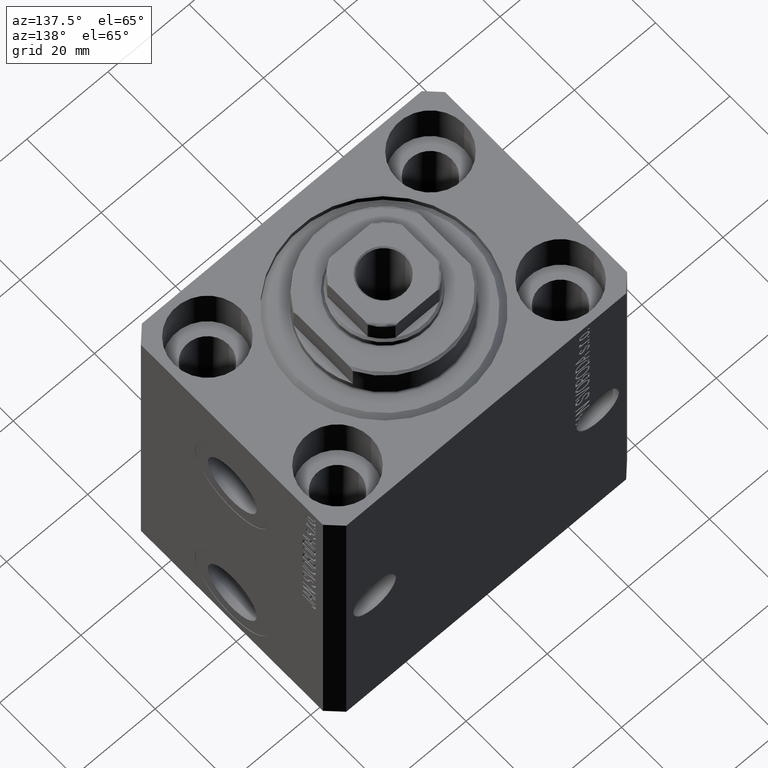
[diagram: clean part render]
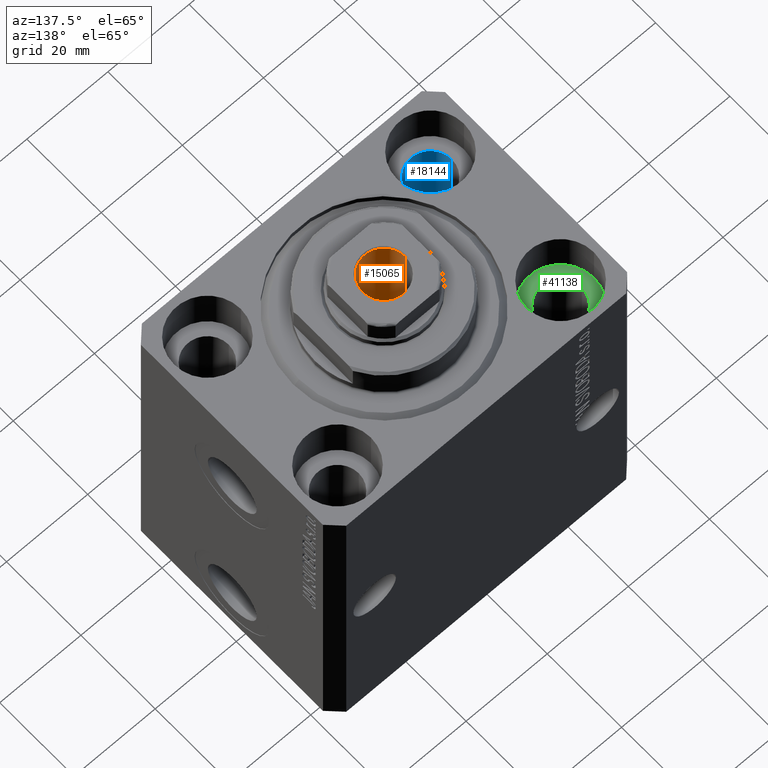
[diagram: same view with three faces highlighted in distinct colors, each labeled with its STEP entity id]
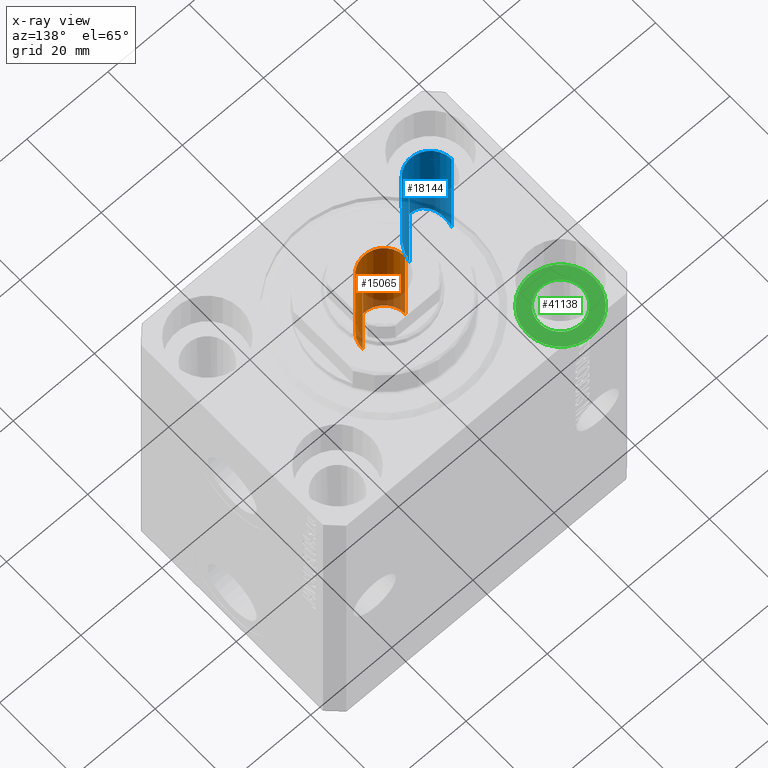
[diagram: x-ray of the same camera — body ghosted, the three highlighted faces saturated]
A machine part, auxiliary view with three faces highlighted in distinct colors.
The next image is the same camera in x-ray (body ghosted, the three faces saturated) — at least one of them is partly hidden behind the body in this view.
Their STEP definitions:

[orange] entity #15065 — the highlighted cylindrical surface (edge-blend (fillet) strip) has radius 5.25 mm, axis along (0, 0, 1).
#2521 = CARTESIAN_POINT ( 'NONE',  ( -5.249999999999995559, 6.429395695523600208E-16, 84.80000000000002558 ) ) ;
#2678 = ORIENTED_EDGE ( 'NONE', *, *, #15729, .T. ) ;
#4017 = EDGE_CURVE ( 'NONE', #16095, #25781, #27975, .T. ) ;
#4331 = VERTEX_POINT ( 'NONE', #39296 ) ;
#4792 = CARTESIAN_POINT ( 'NONE',  ( 0.000000000000000000, 0.000000000000000000, 85.10000000000000853 ) ) ;
#5081 = LINE ( 'NONE', #12743, #8043 ) ;
#7312 = EDGE_CURVE ( 'NONE', #44082, #25781, #43739, .T. ) ;
#8043 = VECTOR ( 'NONE', #25836, 1000.000000000000000 ) ;
#8103 = DIRECTION ( 'NONE',  ( -0.000000000000000000, -0.000000000000000000, 1.000000000000000000 ) ) ;
#11583 = DIRECTION ( 'NONE',  ( -0.000000000000000000, -0.000000000000000000, 1.000000000000000000 ) ) ;
#11804 = DIRECTION ( 'NONE',  ( 1.000000000000000000, 0.000000000000000000, 0.000000000000000000 ) ) ;
#12156 = CARTESIAN_POINT ( 'NONE',  ( 0.000000000000000000, 0.000000000000000000, 60.10000000000000853 ) ) ;
#12743 = CARTESIAN_POINT ( 'NONE',  ( -5.249999999999995559, 6.429395695523600208E-16, 85.10000000000000853 ) ) ;
#12900 = ORIENTED_EDGE ( 'NONE', *, *, #4017, .T. ) ;
#13277 = DIRECTION ( 'NONE',  ( 1.000000000000000000, 0.000000000000000000, 0.000000000000000000 ) ) ;
#15065 = ADVANCED_FACE ( 'NONE', ( #32111 ), #32554, .F. ) ;
#15246 = ORIENTED_EDGE ( 'NONE', *, *, #32123, .F. ) ;
#15729 = EDGE_CURVE ( 'NONE', #4331, #16095, #5081, .T. ) ;
#16095 = VERTEX_POINT ( 'NONE', #2521 ) ;
#17639 = CARTESIAN_POINT ( 'NONE',  ( 5.249999999999995559, 0.000000000000000000, 84.80000000000002558 ) ) ;
#21477 = AXIS2_PLACEMENT_3D ( 'NONE', #41490, #30427, #13277 ) ;
#21917 = EDGE_LOOP ( 'NONE', ( #15246, #2678, #12900, #39482 ) ) ;
#25781 = VERTEX_POINT ( 'NONE', #17639 ) ;
#25836 = DIRECTION ( 'NONE',  ( -0.000000000000000000, -0.000000000000000000, 1.000000000000000000 ) ) ;
#27370 = CARTESIAN_POINT ( 'NONE',  ( 5.249999999999994671, 0.000000000000000000, 60.10000000000000853 ) ) ;
#27975 = CIRCLE ( 'NONE', #21477, 5.249999999999995559 ) ;
#30203 = CARTESIAN_POINT ( 'NONE',  ( 5.249999999999995559, 0.000000000000000000, 85.10000000000000853 ) ) ;
#30427 = DIRECTION ( 'NONE',  ( 0.000000000000000000, 0.000000000000000000, 1.000000000000000000 ) ) ;
#30794 = CIRCLE ( 'NONE', #37348, 5.249999999999994671 ) ;
#32111 = FACE_OUTER_BOUND ( 'NONE', #21917, .T. ) ;
#32123 = EDGE_CURVE ( 'NONE', #4331, #44082, #30794, .T. ) ;
#32243 = DIRECTION ( 'NONE',  ( 1.000000000000000000, 0.000000000000000000, 0.000000000000000000 ) ) ;
#32554 = CYLINDRICAL_SURFACE ( 'NONE', #34790, 5.249999999999995559 ) ;
#33803 = VECTOR ( 'NONE', #40797, 1000.000000000000000 ) ;
#34790 = AXIS2_PLACEMENT_3D ( 'NONE', #4792, #11583, #11804 ) ;
#37348 = AXIS2_PLACEMENT_3D ( 'NONE', #12156, #8103, #32243 ) ;
#39296 = CARTESIAN_POINT ( 'NONE',  ( -5.249999999999994671, 6.429395695523597250E-16, 60.10000000000000853 ) ) ;
#39482 = ORIENTED_EDGE ( 'NONE', *, *, #7312, .F. ) ;
#40797 = DIRECTION ( 'NONE',  ( -0.000000000000000000, -0.000000000000000000, 1.000000000000000000 ) ) ;
#41490 = CARTESIAN_POINT ( 'NONE',  ( 0.000000000000000000, 0.000000000000000000, 84.80000000000002558 ) ) ;
#43739 = LINE ( 'NONE', #30203, #33803 ) ;
#44082 = VERTEX_POINT ( 'NONE', #27370 ) ;

[blue] entity #18144 — the highlighted cylindrical surface (edge-blend (fillet) strip) has radius 5.25 mm, axis along (0, 0, 1).
#538 = VERTEX_POINT ( 'NONE', #26599 ) ;
#3477 = DIRECTION ( 'NONE',  ( 0.000000000000000000, 0.000000000000000000, 1.000000000000000000 ) ) ;
#4887 = CARTESIAN_POINT ( 'NONE',  ( -22.25000000000000000, -17.50000000000000000, -40.00000000000000711 ) ) ;
#7209 = CIRCLE ( 'NONE', #43949, 5.250000000000000888 ) ;
#7817 = EDGE_CURVE ( 'NONE', #35187, #538, #7209, .T. ) ;
#9368 = VECTOR ( 'NONE', #24264, 1000.000000000000000 ) ;
#9977 = DIRECTION ( 'NONE',  ( -0.000000000000000000, -0.000000000000000000, 1.000000000000000000 ) ) ;
#10047 = CARTESIAN_POINT ( 'NONE',  ( -32.75000000000000000, -17.50000000000000000, -80.00000000000000000 ) ) ;
#10717 = ORIENTED_EDGE ( 'NONE', *, *, #32826, .T. ) ;
#11954 = CARTESIAN_POINT ( 'NONE',  ( -22.25000000000000355, -17.50000000000000000, -80.00000000000000000 ) ) ;
#15420 = ORIENTED_EDGE ( 'NONE', *, *, #7817, .T. ) ;
#15502 = CARTESIAN_POINT ( 'NONE',  ( -22.24999999999999645, -28.00000000000000000, -29.50000000000001066 ) ) ;
#16974 = DIRECTION ( 'NONE',  ( 1.000000000000000000, 0.000000000000000000, 0.000000000000000000 ) ) ;
#18144 = ADVANCED_FACE ( 'NONE', ( #41115 ), #24190, .F. ) ;
#18642 = CARTESIAN_POINT ( 'NONE',  ( -32.74999999999999289, -28.00000000000000000, -29.50000000000001066 ) ) ;
#20181 = LINE ( 'NONE', #10047, #9368 ) ;
#22063 = EDGE_LOOP ( 'NONE', ( #28221, #10717, #15420, #39793 ) ) ;
#23732 = CARTESIAN_POINT ( 'NONE',  ( -27.50000000000000355, -17.50000000000000000, -80.00000000000000000 ) ) ;
#23776 = CARTESIAN_POINT ( 'NONE',  ( -27.50000000000000355, -17.50000000000000000, -11.00000000000000000 ) ) ;
#23876 = CARTESIAN_POINT ( 'NONE',  ( -32.74999999999999289, -17.50000000000000000, -40.00000000000000711 ) ) ;
#23982 = VERTEX_POINT ( 'NONE', #23876 ) ;
#24012 = DIRECTION ( 'NONE',  ( 1.000000000000000000, 0.000000000000000000, 0.000000000000000000 ) ) ;
#24190 = CYLINDRICAL_SURFACE ( 'NONE', #31181, 5.250000000000000888 ) ;
#24264 = DIRECTION ( 'NONE',  ( -0.000000000000000000, -0.000000000000000000, 1.000000000000000000 ) ) ;
#24330 = CARTESIAN_POINT ( 'NONE',  ( -22.25000000000000000, -17.50000000000000000, -40.00000000000000711 ) ) ;
#25193 = CARTESIAN_POINT ( 'NONE',  ( -32.75000000000000000, -17.50000000000000000, -11.00000000000000000 ) ) ;
#25705 = DIRECTION ( 'NONE',  ( -0.000000000000000000, -0.000000000000000000, 1.000000000000000000 ) ) ;
#26599 = CARTESIAN_POINT ( 'NONE',  ( -22.25000000000000355, -17.50000000000000000, -11.00000000000000000 ) ) ;
#28221 = ORIENTED_EDGE ( 'NONE', *, *, #33682, .T. ) ;
#31181 = AXIS2_PLACEMENT_3D ( 'NONE', #23732, #9977, #16974 ) ;
#32826 = EDGE_CURVE ( 'NONE', #23982, #35187, #20181, .T. ) ;
#33682 = EDGE_CURVE ( 'NONE', #35999, #23982, #35975, .T. ) ;
#34329 = EDGE_CURVE ( 'NONE', #35999, #538, #36317, .T. ) ;
#35187 = VERTEX_POINT ( 'NONE', #25193 ) ;
#35975 =( BOUNDED_CURVE ( )  B_SPLINE_CURVE ( 3, ( #4887, #15502, #18642, #42361 ),
 .UNSPECIFIED., .F., .F. ) 
 B_SPLINE_CURVE_WITH_KNOTS ( ( 4, 4 ),
 ( 4.712388980384689674, 7.853981633974482790 ),
 .UNSPECIFIED. ) 
 CURVE ( )  GEOMETRIC_REPRESENTATION_ITEM ( )  RATIONAL_B_SPLINE_CURVE ( ( 1.000000000000000000, 0.3333333333333333703, 0.3333333333333333703, 1.000000000000000000 ) ) 
 REPRESENTATION_ITEM ( '' )  );
#35999 = VERTEX_POINT ( 'NONE', #24330 ) ;
#36317 = LINE ( 'NONE', #11954, #38254 ) ;
#38254 = VECTOR ( 'NONE', #25705, 1000.000000000000000 ) ;
#39793 = ORIENTED_EDGE ( 'NONE', *, *, #34329, .F. ) ;
#41115 = FACE_OUTER_BOUND ( 'NONE', #22063, .T. ) ;
#42361 = CARTESIAN_POINT ( 'NONE',  ( -32.74999999999999289, -17.50000000000000000, -40.00000000000000711 ) ) ;
#43949 = AXIS2_PLACEMENT_3D ( 'NONE', #23776, #3477, #24012 ) ;

[green] entity #41138 — the highlighted planar face has unit normal (0, 0, 1).
#892 = CIRCLE ( 'NONE', #15279, 8.250000000000000000 ) ;
#1872 = ORIENTED_EDGE ( 'NONE', *, *, #27009, .F. ) ;
#2683 = EDGE_CURVE ( 'NONE', #33924, #3523, #6293, .T. ) ;
#3523 = VERTEX_POINT ( 'NONE', #28931 ) ;
#3911 = CARTESIAN_POINT ( 'NONE',  ( -19.25000000000000355, 17.50000000000000000, -11.00000000000000000 ) ) ;
#4224 = DIRECTION ( 'NONE',  ( 1.000000000000000000, 0.000000000000000000, 0.000000000000000000 ) ) ;
#5135 = AXIS2_PLACEMENT_3D ( 'NONE', #44590, #20443, #43702 ) ;
#5136 = CARTESIAN_POINT ( 'NONE',  ( -27.50000000000000355, 17.50000000000000000, -11.00000000000000000 ) ) ;
#6293 = CIRCLE ( 'NONE', #32266, 8.250000000000000000 ) ;
#7615 = CARTESIAN_POINT ( 'NONE',  ( -27.50000000000000355, 17.50000000000000000, -11.00000000000000000 ) ) ;
#11349 = EDGE_CURVE ( 'NONE', #21961, #22280, #15931, .T. ) ;
#12140 = DIRECTION ( 'NONE',  ( 0.000000000000000000, 0.000000000000000000, 1.000000000000000000 ) ) ;
#13386 = AXIS2_PLACEMENT_3D ( 'NONE', #38588, #18470, #32029 ) ;
#14660 = FACE_OUTER_BOUND ( 'NONE', #25475, .T. ) ;
#15279 = AXIS2_PLACEMENT_3D ( 'NONE', #26833, #17145, #34065 ) ;
#15519 = ORIENTED_EDGE ( 'NONE', *, *, #11349, .F. ) ;
#15931 = CIRCLE ( 'NONE', #5135, 5.250000000000000888 ) ;
#17145 = DIRECTION ( 'NONE',  ( 0.000000000000000000, 0.000000000000000000, 1.000000000000000000 ) ) ;
#18470 = DIRECTION ( 'NONE',  ( 0.000000000000000000, 0.000000000000000000, 1.000000000000000000 ) ) ;
#20314 = AXIS2_PLACEMENT_3D ( 'NONE', #5136, #12140, #39436 ) ;
#20443 = DIRECTION ( 'NONE',  ( 0.000000000000000000, 0.000000000000000000, 1.000000000000000000 ) ) ;
#21961 = VERTEX_POINT ( 'NONE', #23169 ) ;
#22280 = VERTEX_POINT ( 'NONE', #31033 ) ;
#23169 = CARTESIAN_POINT ( 'NONE',  ( -32.75000000000000000, 17.50000000000000000, -11.00000000000000000 ) ) ;
#24350 = FACE_BOUND ( 'NONE', #32814, .T. ) ;
#25314 = ORIENTED_EDGE ( 'NONE', *, *, #2683, .T. ) ;
#25475 = EDGE_LOOP ( 'NONE', ( #25314, #39660 ) ) ;
#26833 = CARTESIAN_POINT ( 'NONE',  ( -27.50000000000000355, 17.50000000000000000, -11.00000000000000000 ) ) ;
#27009 = EDGE_CURVE ( 'NONE', #22280, #21961, #32838, .T. ) ;
#28931 = CARTESIAN_POINT ( 'NONE',  ( -35.75000000000000711, 17.50000000000000000, -11.00000000000000000 ) ) ;
#31033 = CARTESIAN_POINT ( 'NONE',  ( -22.25000000000000355, 17.50000000000000000, -11.00000000000000000 ) ) ;
#32029 = DIRECTION ( 'NONE',  ( 1.000000000000000000, 0.000000000000000000, 0.000000000000000000 ) ) ;
#32266 = AXIS2_PLACEMENT_3D ( 'NONE', #7615, #35152, #4224 ) ;
#32814 = EDGE_LOOP ( 'NONE', ( #1872, #15519 ) ) ;
#32838 = CIRCLE ( 'NONE', #13386, 5.250000000000000888 ) ;
#33924 = VERTEX_POINT ( 'NONE', #3911 ) ;
#34065 = DIRECTION ( 'NONE',  ( 1.000000000000000000, 0.000000000000000000, 0.000000000000000000 ) ) ;
#35152 = DIRECTION ( 'NONE',  ( 0.000000000000000000, 0.000000000000000000, 1.000000000000000000 ) ) ;
#35630 = PLANE ( 'NONE',  #20314 ) ;
#38588 = CARTESIAN_POINT ( 'NONE',  ( -27.50000000000000355, 17.50000000000000000, -11.00000000000000000 ) ) ;
#39436 = DIRECTION ( 'NONE',  ( 1.000000000000000000, 0.000000000000000000, -0.000000000000000000 ) ) ;
#39660 = ORIENTED_EDGE ( 'NONE', *, *, #40451, .T. ) ;
#40451 = EDGE_CURVE ( 'NONE', #3523, #33924, #892, .T. ) ;
#41138 = ADVANCED_FACE ( 'NONE', ( #24350, #14660 ), #35630, .T. ) ;
#43702 = DIRECTION ( 'NONE',  ( 1.000000000000000000, 0.000000000000000000, 0.000000000000000000 ) ) ;
#44590 = CARTESIAN_POINT ( 'NONE',  ( -27.50000000000000355, 17.50000000000000000, -11.00000000000000000 ) ) ;